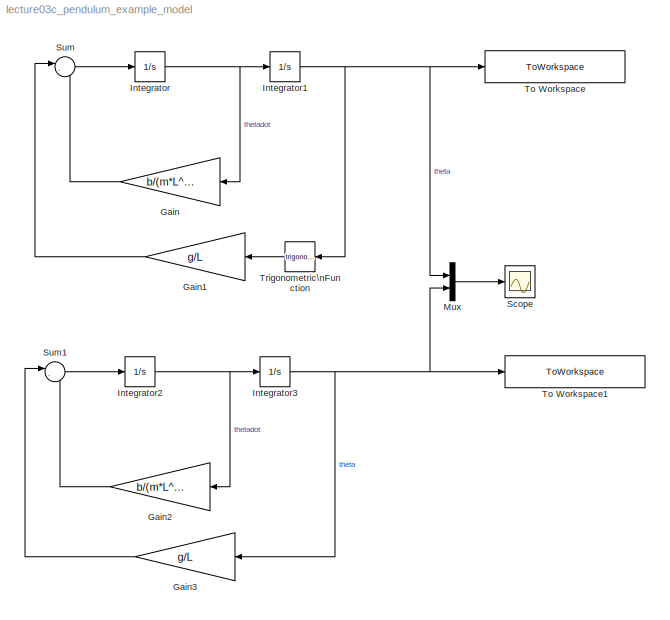
MODEL lecture03c_pendulum_example_model
KIND model
BLOCK [Gain] Gain
  Gain = b/(m*L^2)
  OutDataTypeStr = Inherit: Inherit via internal rule
  ParamDataTypeStr = Inherit: Inherit via internal rule
  SID = 4
  SaturateOnIntegerOverflow = off
BLOCK [Gain] Gain1
  Gain = g/L
  OutDataTypeStr = Inherit: Inherit via internal rule
  ParamDataTypeStr = Inherit: Inherit via internal rule
  SID = 8
  SaturateOnIntegerOverflow = off
BLOCK [Gain] Gain2
  Gain = b/(m*L^2)
  OutDataTypeStr = Inherit: Inherit via internal rule
  ParamDataTypeStr = Inherit: Inherit via internal rule
  SID = 15
  SaturateOnIntegerOverflow = off
BLOCK [Gain] Gain3
  Gain = g/L
  OutDataTypeStr = Inherit: Inherit via internal rule
  ParamDataTypeStr = Inherit: Inherit via internal rule
  SID = 16
  SaturateOnIntegerOverflow = off
BLOCK [Integrator] Integrator
  InitialCondition = thetaDot0
  Ports = [1, 1]
  SID = 1
BLOCK [Integrator] Integrator1
  InitialCondition = theta0
  Ports = [1, 1]
  SID = 2
BLOCK [Integrator] Integrator2
  InitialCondition = thetaDot0
  Ports = [1, 1]
  SID = 17
BLOCK [Integrator] Integrator3
  InitialCondition = theta0
  Ports = [1, 1]
  SID = 18
BLOCK [Mux] Mux
  DisplayOption = bar
  Inputs = 2
  Ports = [2, 1]
  SID = 21
BLOCK [Scope] Scope
  Floating = off
  NumInputPorts = 1
  Ports = [1]
  SID = 3
  ScopeSpecificationString = Simulink.scopes.TimeScopeBlockCfg('CurrentConfiguration', extmgr.ConfigurationSet(extmgr.Configuration('Core','General UI',true),extmgr.Configuration('Core','Source UI',true),extmgr.Configuration('Sources','WiredSimulink',true,'DataLoggingSaveFormat','StructureWithTime','DataLoggingLimitDataPoints',true,'DataLoggingDecimation','1','DataLoggingDecimateData',true),extmgr.Configuration('Visuals','Tim...<+1675ch>
BLOCK [Sum] Sum
  IconShape = round
  InputSameDT = off
  Inputs = |--
  OutDataTypeStr = Inherit: Inherit via internal rule
  Ports = [2, 1]
  SID = 5
  SaturateOnIntegerOverflow = off
BLOCK [Sum] Sum1
  IconShape = round
  InputSameDT = off
  Inputs = |--
  OutDataTypeStr = Inherit: Inherit via internal rule
  Ports = [2, 1]
  SID = 19
  SaturateOnIntegerOverflow = off
BLOCK [ToWorkspace] To Workspace
  MaxDataPoints = inf
  Ports = [1]
  SID = 22
  SampleTime = -1
  SaveFormat = Structure With Time
  VariableName = simThetaNonlinear
BLOCK [ToWorkspace] To Workspace1
  MaxDataPoints = inf
  Ports = [1]
  SID = 23
  SampleTime = -1
  SaveFormat = Structure With Time
  VariableName = simThetaLinear
BLOCK [Trigonometry] Trigonometric\nFunction
  Ports = [1, 1]
  SID = 7
LINE Gain1:1 -> Sum:1
LINE Gain2:1 -> Sum1:2
LINE Gain3:1 -> Sum1:1
LINE Gain:1 -> Sum:2
NET Integrator1:1 -> Mux:1, To Workspace:1, Trigonometric\nFunction:1
NET Integrator2:1 -> Gain2:1, Integrator3:1
NET Integrator3:1 -> Gain3:1, Mux:2, To Workspace1:1
NET Integrator:1 -> Gain:1, Integrator1:1
LINE Mux:1 -> Scope:1
LINE Sum1:1 -> Integrator2:1
LINE Sum:1 -> Integrator:1
LINE Trigonometric\nFunction:1 -> Gain1:1
note: NET lines group one-source signal fan-out (src -> all destinations, sorted); 1:1 wires keep LINE
